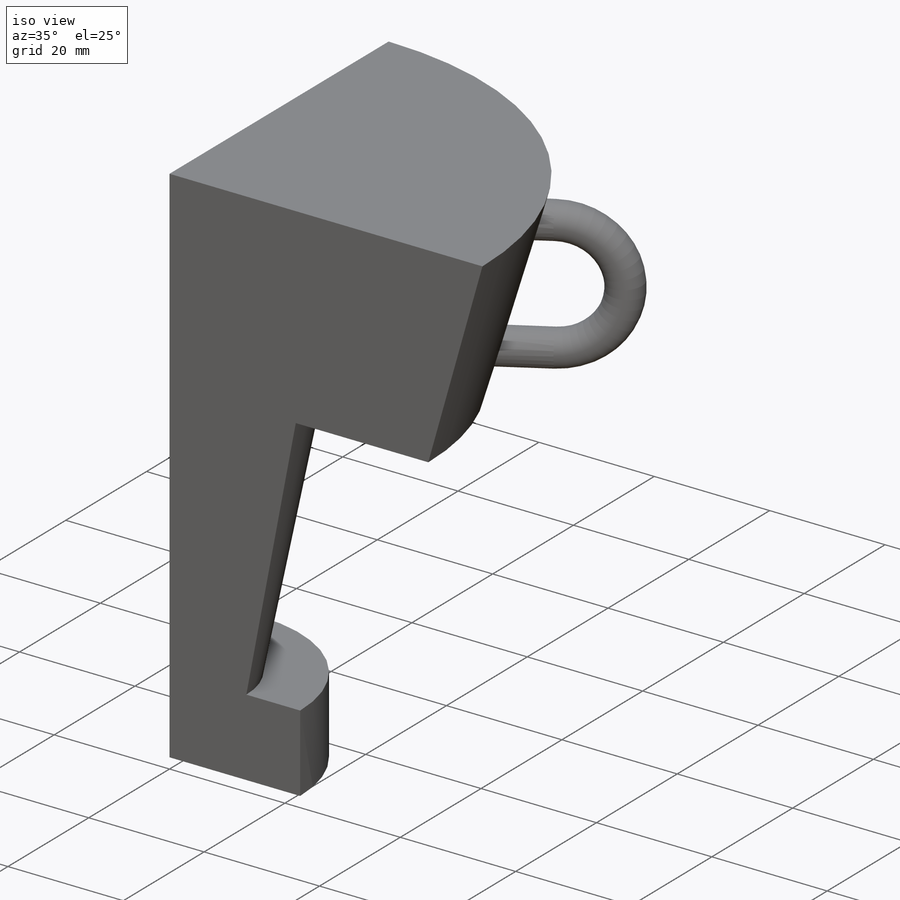
[diagram: iso view]
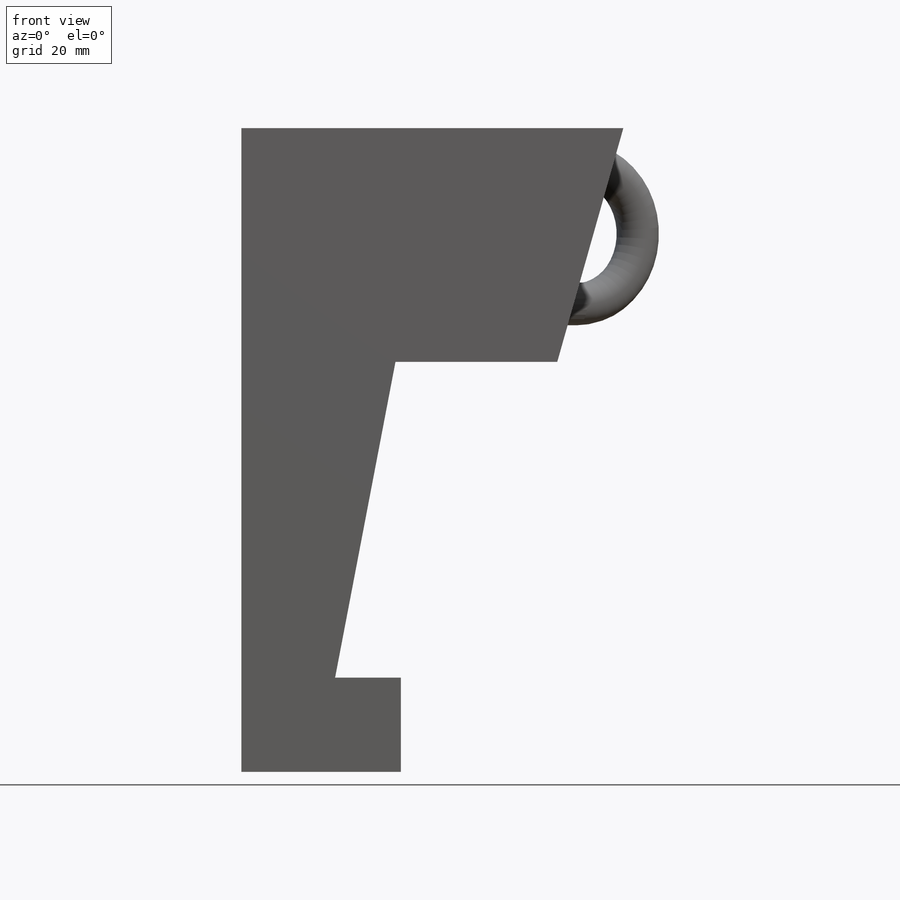
[diagram: front view]
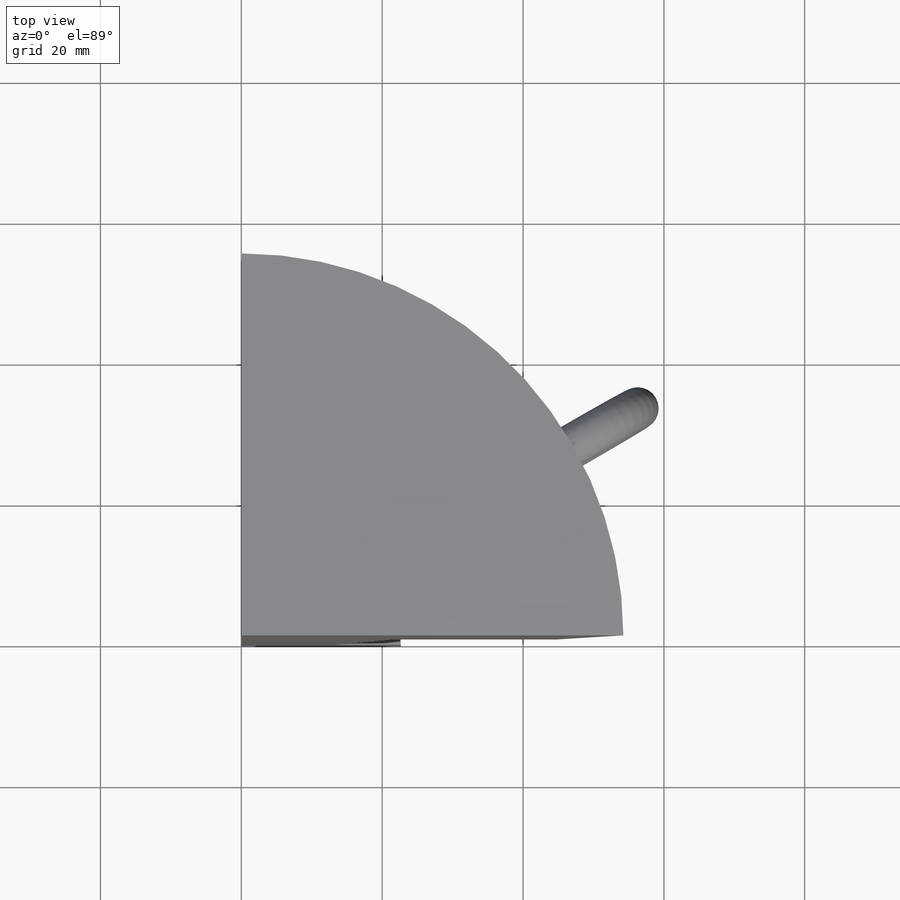
[diagram: top view]
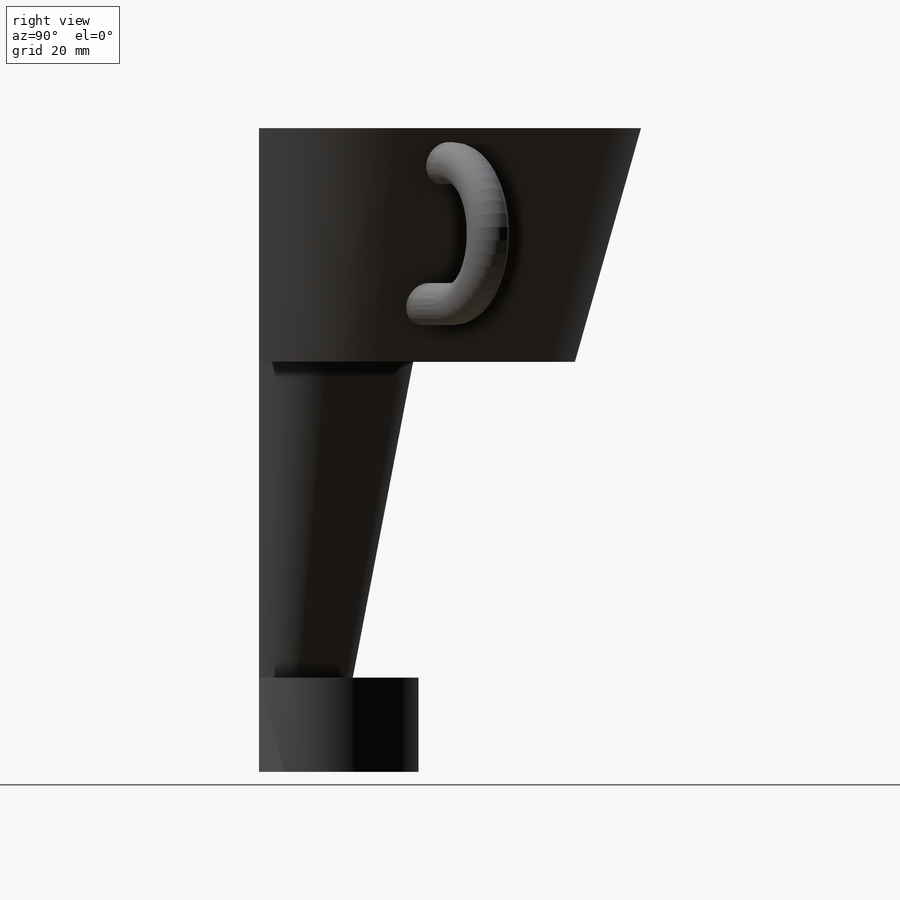
[diagram: right view]
SOLIDWORKS PART (.sldprt)
format: sldprt  version: not decoded by parser v0  size: 228,864 bytes
history: native  units: mm
features: sketch x9, plane x7, sweep x2, extrude x2, material x1, revolve x1, move_body x1, boolean_combine x1 (+12 scaffold rows collapsed; 3 parser-record rows omitted)
feature tree (39):
  scaffold x12  (default folders/planes/origin — collapsed)
  material  "Material <nicht festgelegt>"
  plane  "Ebene vorne"
  plane  "Ebene oben"
  plane  "Ebene rechts"
  sketch  "Skizze1"
  revolve  "Rotation1"  Angle=90deg
  sketch  "Skizze2"
  parser-record x3  (decoder bookkeeping rows leaked as tree rows — omitted from the tree; the rows remain in map.json)
  plane  "Ebene1"
  sketch  "Skizze3"  dims[D1=4.0mm]
  sweep  "Austragung1"
  move_body  "Körper-Verschieben/Kopieren1"
  boolean_combine  "Kombinieren1"
  plane  "Ebene2"
  sketch  "Skizze4"  dims[D1=~0.547118mm]
  plane  "Ebene3"
  sketch  "Skizze6"  dims[D1=~4.001236mm D2=5.0mm D3=55.0mm]
  sketch  "Skizze5"  dims[D1=6.0mm]
  sweep  "Austragung2"
  sketch  "Skizze7"
  extrude  "Aufsatz-Linear austragen1"  [1 undecoded]
  sketch  "Skizze9"  dims[c1.D1=~46.248119mm c2.D1=30.0deg]
  plane  "Ebene4"
  sketch  "Skizze8"  dims[D1=6.0mm D2=15.0mm]
  extrude  "Aufsatz-Linear austragen2"  [1 undecoded]
decode coverage: 7 of 16 modeling features carry decoded parameters
note: ~ marks probable driven/reference dimensions
note: 2 parameter values undecoded
note: suppression state not decoded; provenance and decode notes live in map.json
